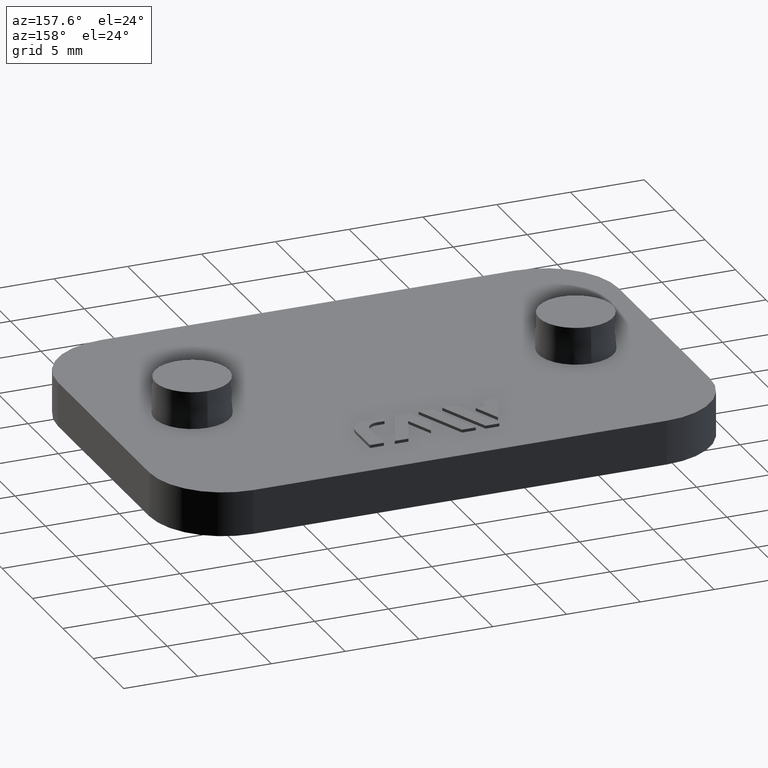
[diagram: clean part render]
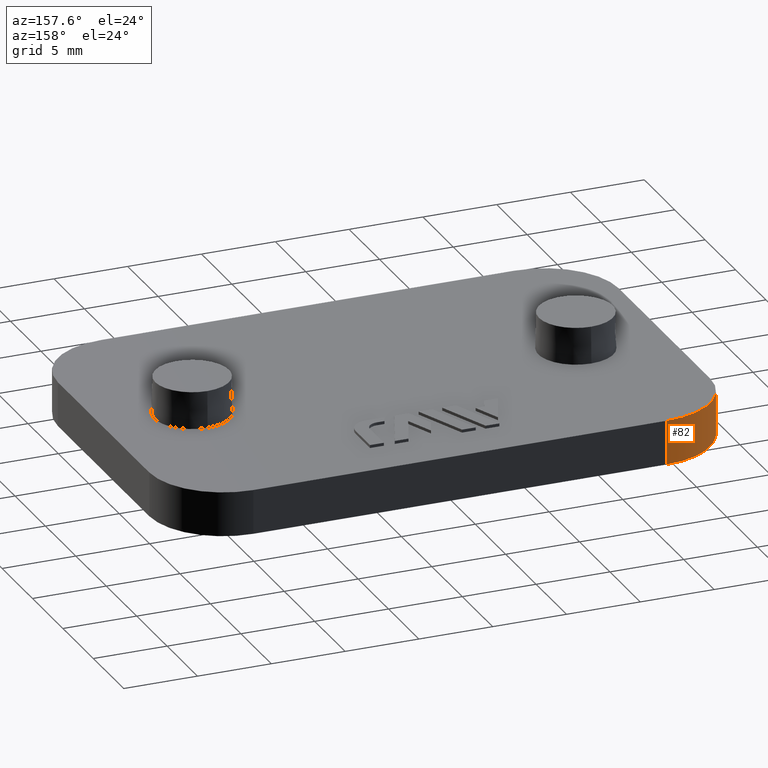
[diagram: same view with one face highlighted and labeled with its STEP entity id]
A machine part, auxiliary view. The second image highlights one B-rep face of the part: STEP entity #82.
In plain terms, the highlighted cylindrical surface (partial cylindrical patch) has radius 5 mm, axis along (-0, 0, 1).
Its self-contained STEP definition (entity closure, byte-faithful):
#82 = ADVANCED_FACE( '', ( #160 ), #161, .T. );
#160 = FACE_OUTER_BOUND( '', #293, .T. );
#161 = CYLINDRICAL_SURFACE( '', #294, 5.00000000000000 );
#293 = EDGE_LOOP( '', ( #502, #503, #504, #505 ) );
#294 = AXIS2_PLACEMENT_3D( '', #506, #507, #508 );
#502 = ORIENTED_EDGE( '', *, *, #948, .F. );
#503 = ORIENTED_EDGE( '', *, *, #895, .T. );
#504 = ORIENTED_EDGE( '', *, *, #922, .T. );
#505 = ORIENTED_EDGE( '', *, *, #946, .F. );
#506 = CARTESIAN_POINT( '', ( -14.0000000000000, 7.50000000000001, 74.2720256703614 ) );
#507 = DIRECTION( '', ( -1.60751816480226E-016, 1.81794180051289E-016, 1.00000000000000 ) );
#508 = DIRECTION( '', ( -1.00000000000000, 2.31296463463574E-016, -1.60751816480226E-016 ) );
#895 = EDGE_CURVE( '', #1057, #1055, #1058, .T. );
#922 = EDGE_CURVE( '', #1055, #1108, #1110, .T. );
#946 = EDGE_CURVE( '', #1153, #1108, #1155, .T. );
#948 = EDGE_CURVE( '', #1057, #1153, #1157, .T. );
#1055 = VERTEX_POINT( '', #1314 );
#1057 = VERTEX_POINT( '', #1317 );
#1058 = CIRCLE( '', #1318, 5.00000000000000 );
#1108 = VERTEX_POINT( '', #1387 );
#1110 = LINE( '', #1390, #1391 );
#1153 = VERTEX_POINT( '', #1453 );
#1155 = CIRCLE( '', #1456, 5.00000000000000 );
#1157 = LINE( '', #1459, #1460 );
#1314 = CARTESIAN_POINT( '', ( -14.0000000000000, 12.5000000000000, 2.99999999999999 ) );
#1317 = CARTESIAN_POINT( '', ( -19.0000000000000, 7.50000000000000, 2.99999999999999 ) );
#1318 = AXIS2_PLACEMENT_3D( '', #1673, #1674, #1675 );
#1387 = CARTESIAN_POINT( '', ( -14.0000000000000, 12.5000000000000, -1.46431667789534E-014 ) );
#1390 = CARTESIAN_POINT( '', ( -14.0000000000000, 12.5000000000000, 74.2720256703614 ) );
#1391 = VECTOR( '', #1714, 1000.00000000000 );
#1453 = CARTESIAN_POINT( '', ( -19.0000000000000, 7.50000000000000, -1.43370151904978E-014 ) );
#1456 = AXIS2_PLACEMENT_3D( '', #1744, #1745, #1746 );
#1459 = CARTESIAN_POINT( '', ( -19.0000000000000, 7.50000000000001, 74.2720256703614 ) );
#1460 = VECTOR( '', #1748, 1000.00000000000 );
#1673 = CARTESIAN_POINT( '', ( -14.0000000000000, 7.50000000000000, 2.99999999999999 ) );
#1674 = DIRECTION( '', ( 0.000000000000000, -6.12303176911189E-017, -1.00000000000000 ) );
#1675 = DIRECTION( '', ( 0.000000000000000, 1.00000000000000, -6.12303176911189E-017 ) );
#1714 = DIRECTION( '', ( 1.60751816480226E-016, -1.81794180051289E-016, -1.00000000000000 ) );
#1744 = CARTESIAN_POINT( '', ( -14.0000000000000, 7.50000000000000, -1.43370151904978E-014 ) );
#1745 = DIRECTION( '', ( 0.000000000000000, -6.12303176911189E-017, -1.00000000000000 ) );
#1746 = DIRECTION( '', ( 0.000000000000000, 1.00000000000000, -6.12303176911189E-017 ) );
#1748 = DIRECTION( '', ( 1.60751816480226E-016, -1.81794180051289E-016, -1.00000000000000 ) );